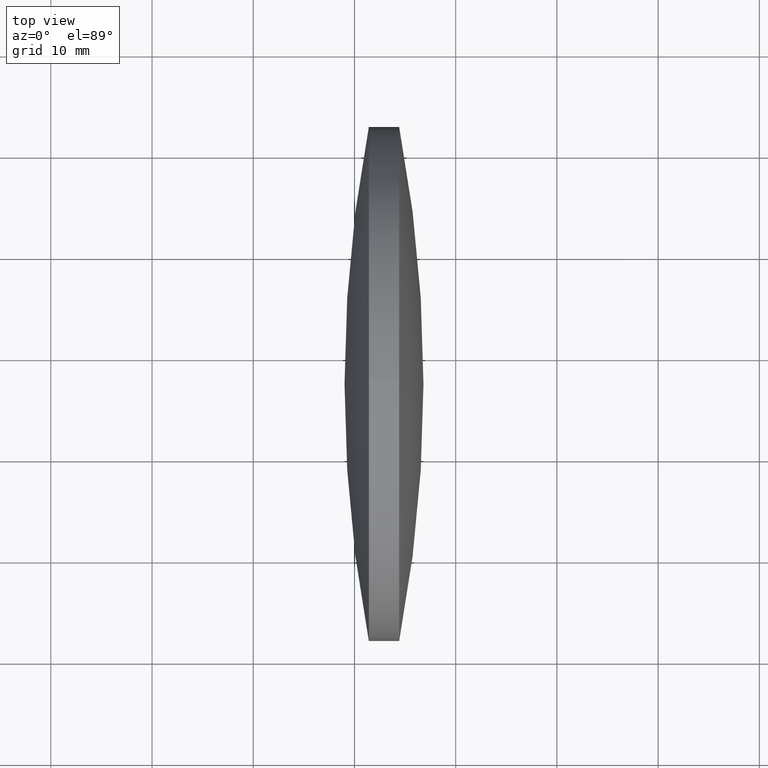
[diagram: clean part render]
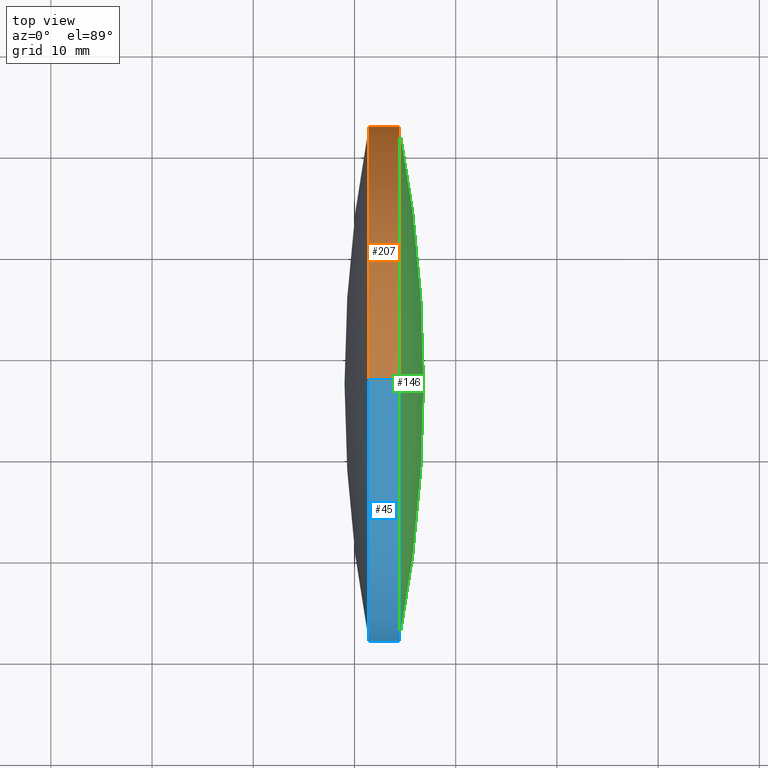
[diagram: same view with three faces highlighted in distinct colors, each labeled with its STEP entity id]
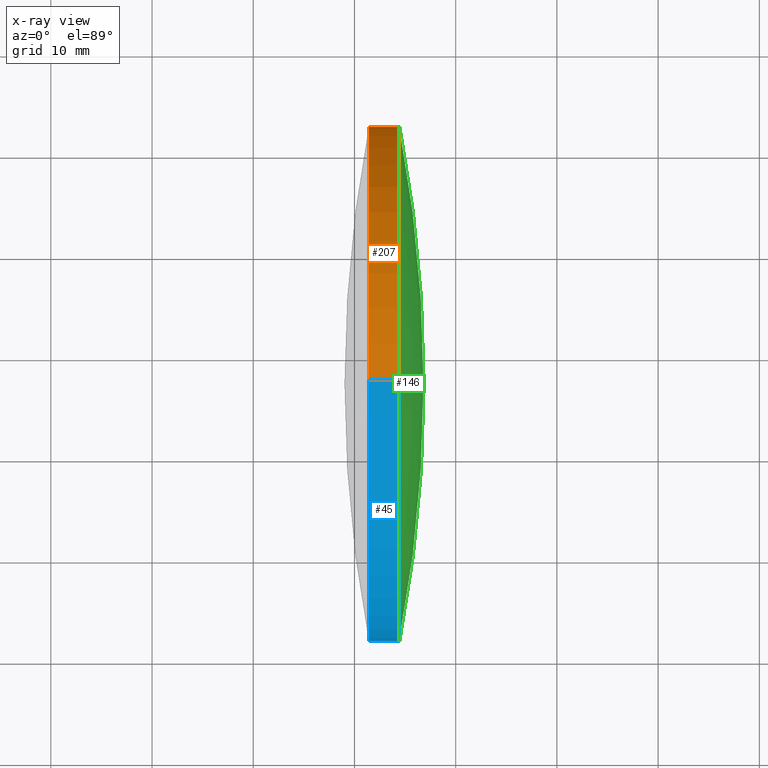
[diagram: x-ray of the same camera — body ghosted, the three highlighted faces saturated]
A machine part, top view with three faces highlighted in distinct colors.
The next image is the same camera in x-ray (body ghosted, the three faces saturated) — at least one of them is partly hidden behind the body in this view.
Their STEP definitions:

[orange] entity #207 — the highlighted cylindrical surface (partial cylindrical patch) has radius 25.4 mm, axis along (-1, -0, -0).
#2 = AXIS2_PLACEMENT_3D ( 'NONE', #140, #159, #9 ) ;
#5 = CARTESIAN_POINT ( 'NONE',  ( 171.4164086921822200, 97.23222604636956100, 25.39999999999999100 ) ) ;
#8 = CARTESIAN_POINT ( 'NONE',  ( 171.4164086921822200, 97.23222604636956100, -25.39999999999999100 ) ) ;
#9 = DIRECTION ( 'NONE',  ( 0.0000000000000000000, 0.0000000000000000000, 1.000000000000000000 ) ) ;
#11 = EDGE_CURVE ( 'NONE', #256, #63, #77, .T. ) ;
#25 = DIRECTION ( 'NONE',  ( 0.0000000000000000000, 0.0000000000000000000, 1.000000000000000000 ) ) ;
#26 = AXIS2_PLACEMENT_3D ( 'NONE', #341, #215, #181 ) ;
#31 = CIRCLE ( 'NONE', #75, 25.39999999999999100 ) ;
#42 = ORIENTED_EDGE ( 'NONE', *, *, #164, .F. ) ;
#49 = CARTESIAN_POINT ( 'NONE',  ( 171.4164086921822200, 97.23222604636956100, 0.0000000000000000000 ) ) ;
#50 = VERTEX_POINT ( 'NONE', #5 ) ;
#53 = LINE ( 'NONE', #212, #246 ) ;
#56 = CARTESIAN_POINT ( 'NONE',  ( 174.4163664064679400, 97.23222604636956100, -25.39999999999999100 ) ) ;
#63 = VERTEX_POINT ( 'NONE', #56 ) ;
#68 = DIRECTION ( 'NONE',  ( -1.000000000000000000, -0.0000000000000000000, -0.0000000000000000000 ) ) ;
#70 = CARTESIAN_POINT ( 'NONE',  ( 165.7441079421506900, 97.23222604636956100, 0.0000000000000000000 ) ) ;
#71 = AXIS2_PLACEMENT_3D ( 'NONE', #70, #178, #205 ) ;
#75 = AXIS2_PLACEMENT_3D ( 'NONE', #49, #68, #25 ) ;
#77 = CIRCLE ( 'NONE', #26, 25.39999999999999100 ) ;
#86 = EDGE_LOOP ( 'NONE', ( #343, #282, #42, #272, #165, #217 ) ) ;
#96 = VERTEX_POINT ( 'NONE', #8 ) ;
#97 = DIRECTION ( 'NONE',  ( 0.0000000000000000000, 0.0000000000000000000, 1.000000000000000000 ) ) ;
#106 = FACE_OUTER_BOUND ( 'NONE', #86, .T. ) ;
#113 = DIRECTION ( 'NONE',  ( -1.000000000000000000, -0.0000000000000000000, -0.0000000000000000000 ) ) ;
#126 = DIRECTION ( 'NONE',  ( -1.000000000000000000, -0.0000000000000000000, -0.0000000000000000000 ) ) ;
#134 = AXIS2_PLACEMENT_3D ( 'NONE', #279, #126, #97 ) ;
#137 = CARTESIAN_POINT ( 'NONE',  ( 165.7441079421506900, 97.23222604636956100, 25.39999999999999100 ) ) ;
#140 = CARTESIAN_POINT ( 'NONE',  ( 174.4163664064679400, 97.23222604636956100, 0.0000000000000000000 ) ) ;
#159 = DIRECTION ( 'NONE',  ( -1.000000000000000000, -0.0000000000000000000, -0.0000000000000000000 ) ) ;
#164 = EDGE_CURVE ( 'NONE', #299, #96, #243, .T. ) ;
#165 = ORIENTED_EDGE ( 'NONE', *, *, #224, .F. ) ;
#170 = CIRCLE ( 'NONE', #2, 25.39999999999999100 ) ;
#175 = CYLINDRICAL_SURFACE ( 'NONE', #71, 25.39999999999999100 ) ;
#176 = VERTEX_POINT ( 'NONE', #331 ) ;
#178 = DIRECTION ( 'NONE',  ( -1.000000000000000000, -0.0000000000000000000, -0.0000000000000000000 ) ) ;
#180 = LINE ( 'NONE', #137, #298 ) ;
#181 = DIRECTION ( 'NONE',  ( 0.0000000000000000000, 0.0000000000000000000, 1.000000000000000000 ) ) ;
#184 = EDGE_CURVE ( 'NONE', #50, #299, #31, .T. ) ;
#188 = CARTESIAN_POINT ( 'NONE',  ( 171.4164086921822200, 122.6322260463695000, 0.0000000000000000000 ) ) ;
#205 = DIRECTION ( 'NONE',  ( 0.0000000000000000000, 0.0000000000000000000, 1.000000000000000000 ) ) ;
#207 = ADVANCED_FACE ( 'NONE', ( #106 ), #175, .T. ) ;
#212 = CARTESIAN_POINT ( 'NONE',  ( 165.7441079421506900, 97.23222604636956100, -25.39999999999999100 ) ) ;
#215 = DIRECTION ( 'NONE',  ( -1.000000000000000000, -0.0000000000000000000, -0.0000000000000000000 ) ) ;
#217 = ORIENTED_EDGE ( 'NONE', *, *, #268, .T. ) ;
#219 = CARTESIAN_POINT ( 'NONE',  ( 174.4163664064679400, 122.6322260463691100, 0.0000000000000000000 ) ) ;
#223 = EDGE_CURVE ( 'NONE', #63, #96, #53, .T. ) ;
#224 = EDGE_CURVE ( 'NONE', #176, #50, #180, .T. ) ;
#243 = CIRCLE ( 'NONE', #134, 25.39999999999999100 ) ;
#246 = VECTOR ( 'NONE', #292, 1000.000000000000000 ) ;
#256 = VERTEX_POINT ( 'NONE', #219 ) ;
#268 = EDGE_CURVE ( 'NONE', #176, #256, #170, .T. ) ;
#272 = ORIENTED_EDGE ( 'NONE', *, *, #184, .F. ) ;
#279 = CARTESIAN_POINT ( 'NONE',  ( 171.4164086921822200, 97.23222604636956100, 0.0000000000000000000 ) ) ;
#282 = ORIENTED_EDGE ( 'NONE', *, *, #223, .T. ) ;
#292 = DIRECTION ( 'NONE',  ( -1.000000000000000000, -0.0000000000000000000, -0.0000000000000000000 ) ) ;
#298 = VECTOR ( 'NONE', #113, 1000.000000000000000 ) ;
#299 = VERTEX_POINT ( 'NONE', #188 ) ;
#331 = CARTESIAN_POINT ( 'NONE',  ( 174.4163664064679400, 97.23222604636956100, 25.39999999999999100 ) ) ;
#341 = CARTESIAN_POINT ( 'NONE',  ( 174.4163664064679400, 97.23222604636956100, 0.0000000000000000000 ) ) ;
#343 = ORIENTED_EDGE ( 'NONE', *, *, #11, .T. ) ;

[blue] entity #45 — the highlighted cylindrical surface (partial cylindrical patch) has radius 25.4 mm, axis along (-1, -0, -0).
#4 = CARTESIAN_POINT ( 'NONE',  ( 174.4163664064679400, 71.83222604636907200, -3.110602869834221600E-015 ) ) ;
#5 = CARTESIAN_POINT ( 'NONE',  ( 171.4164086921822200, 97.23222604636956100, 25.39999999999999100 ) ) ;
#7 = CARTESIAN_POINT ( 'NONE',  ( 171.4164086921822200, 97.23222604636956100, 0.0000000000000000000 ) ) ;
#8 = CARTESIAN_POINT ( 'NONE',  ( 171.4164086921822200, 97.23222604636956100, -25.39999999999999100 ) ) ;
#13 = CIRCLE ( 'NONE', #55, 25.39999999999999100 ) ;
#18 = DIRECTION ( 'NONE',  ( -1.000000000000000000, -0.0000000000000000000, -0.0000000000000000000 ) ) ;
#27 = ORIENTED_EDGE ( 'NONE', *, *, #224, .T. ) ;
#35 = CIRCLE ( 'NONE', #237, 25.39999999999999100 ) ;
#43 = EDGE_CURVE ( 'NONE', #63, #238, #13, .T. ) ;
#45 = ADVANCED_FACE ( 'NONE', ( #148 ), #130, .T. ) ;
#50 = VERTEX_POINT ( 'NONE', #5 ) ;
#53 = LINE ( 'NONE', #212, #246 ) ;
#55 = AXIS2_PLACEMENT_3D ( 'NONE', #119, #85, #138 ) ;
#56 = CARTESIAN_POINT ( 'NONE',  ( 174.4163664064679400, 97.23222604636956100, -25.39999999999999100 ) ) ;
#62 = DIRECTION ( 'NONE',  ( 0.0000000000000000000, 0.0000000000000000000, 1.000000000000000000 ) ) ;
#63 = VERTEX_POINT ( 'NONE', #56 ) ;
#64 = CARTESIAN_POINT ( 'NONE',  ( 165.7441079421506900, 97.23222604636956100, 0.0000000000000000000 ) ) ;
#65 = CARTESIAN_POINT ( 'NONE',  ( 171.4164086921822200, 97.23222604636956100, 0.0000000000000000000 ) ) ;
#66 = CARTESIAN_POINT ( 'NONE',  ( 174.4163664064679400, 97.23222604636956100, 0.0000000000000000000 ) ) ;
#85 = DIRECTION ( 'NONE',  ( -1.000000000000000000, -0.0000000000000000000, -0.0000000000000000000 ) ) ;
#91 = AXIS2_PLACEMENT_3D ( 'NONE', #66, #169, #250 ) ;
#96 = VERTEX_POINT ( 'NONE', #8 ) ;
#102 = CARTESIAN_POINT ( 'NONE',  ( 171.4164086921822200, 71.83222604636951300, -3.110602869834268200E-015 ) ) ;
#103 = ORIENTED_EDGE ( 'NONE', *, *, #43, .T. ) ;
#113 = DIRECTION ( 'NONE',  ( -1.000000000000000000, -0.0000000000000000000, -0.0000000000000000000 ) ) ;
#119 = CARTESIAN_POINT ( 'NONE',  ( 174.4163664064679400, 97.23222604636956100, 0.0000000000000000000 ) ) ;
#121 = ORIENTED_EDGE ( 'NONE', *, *, #288, .T. ) ;
#128 = ORIENTED_EDGE ( 'NONE', *, *, #232, .F. ) ;
#130 = CYLINDRICAL_SURFACE ( 'NONE', #293, 25.39999999999999100 ) ;
#137 = CARTESIAN_POINT ( 'NONE',  ( 165.7441079421506900, 97.23222604636956100, 25.39999999999999100 ) ) ;
#138 = DIRECTION ( 'NONE',  ( 0.0000000000000000000, 0.0000000000000000000, 1.000000000000000000 ) ) ;
#148 = FACE_OUTER_BOUND ( 'NONE', #244, .T. ) ;
#154 = CIRCLE ( 'NONE', #234, 25.39999999999999100 ) ;
#162 = DIRECTION ( 'NONE',  ( -1.000000000000000000, -0.0000000000000000000, -0.0000000000000000000 ) ) ;
#168 = CIRCLE ( 'NONE', #91, 25.39999999999999100 ) ;
#169 = DIRECTION ( 'NONE',  ( -1.000000000000000000, -0.0000000000000000000, -0.0000000000000000000 ) ) ;
#176 = VERTEX_POINT ( 'NONE', #331 ) ;
#180 = LINE ( 'NONE', #137, #298 ) ;
#183 = ORIENTED_EDGE ( 'NONE', *, *, #223, .F. ) ;
#198 = DIRECTION ( 'NONE',  ( 0.0000000000000000000, 0.0000000000000000000, 1.000000000000000000 ) ) ;
#212 = CARTESIAN_POINT ( 'NONE',  ( 165.7441079421506900, 97.23222604636956100, -25.39999999999999100 ) ) ;
#222 = DIRECTION ( 'NONE',  ( 0.0000000000000000000, 0.0000000000000000000, 1.000000000000000000 ) ) ;
#223 = EDGE_CURVE ( 'NONE', #63, #96, #53, .T. ) ;
#224 = EDGE_CURVE ( 'NONE', #176, #50, #180, .T. ) ;
#232 = EDGE_CURVE ( 'NONE', #96, #233, #154, .T. ) ;
#233 = VERTEX_POINT ( 'NONE', #102 ) ;
#234 = AXIS2_PLACEMENT_3D ( 'NONE', #7, #162, #62 ) ;
#237 = AXIS2_PLACEMENT_3D ( 'NONE', #65, #18, #198 ) ;
#238 = VERTEX_POINT ( 'NONE', #4 ) ;
#244 = EDGE_LOOP ( 'NONE', ( #183, #103, #121, #27, #294, #128 ) ) ;
#246 = VECTOR ( 'NONE', #292, 1000.000000000000000 ) ;
#250 = DIRECTION ( 'NONE',  ( 0.0000000000000000000, 0.0000000000000000000, 1.000000000000000000 ) ) ;
#288 = EDGE_CURVE ( 'NONE', #238, #176, #168, .T. ) ;
#292 = DIRECTION ( 'NONE',  ( -1.000000000000000000, -0.0000000000000000000, -0.0000000000000000000 ) ) ;
#293 = AXIS2_PLACEMENT_3D ( 'NONE', #64, #324, #222 ) ;
#294 = ORIENTED_EDGE ( 'NONE', *, *, #314, .F. ) ;
#298 = VECTOR ( 'NONE', #113, 1000.000000000000000 ) ;
#314 = EDGE_CURVE ( 'NONE', #233, #50, #35, .T. ) ;
#324 = DIRECTION ( 'NONE',  ( -1.000000000000000000, -0.0000000000000000000, -0.0000000000000000000 ) ) ;
#331 = CARTESIAN_POINT ( 'NONE',  ( 174.4163664064679400, 97.23222604636956100, 25.39999999999999100 ) ) ;

[green] entity #146 — the highlighted spherical surface has radius 135.608 mm.
#1 = DIRECTION ( 'NONE',  ( 0.0000000000000000000, 1.000000000000000000, 1.224646799147353200E-016 ) ) ;
#2 = AXIS2_PLACEMENT_3D ( 'NONE', #140, #159, #9 ) ;
#4 = CARTESIAN_POINT ( 'NONE',  ( 174.4163664064679400, 71.83222604636907200, -3.110602869834221600E-015 ) ) ;
#9 = DIRECTION ( 'NONE',  ( 0.0000000000000000000, 0.0000000000000000000, 1.000000000000000000 ) ) ;
#16 = DIRECTION ( 'NONE',  ( -0.0000000000000000000, 0.0000000000000000000, -1.000000000000000000 ) ) ;
#32 = ORIENTED_EDGE ( 'NONE', *, *, #218, .F. ) ;
#33 = DIRECTION ( 'NONE',  ( 0.0000000000000000000, 1.224646799147353200E-016, -1.000000000000000000 ) ) ;
#60 = CARTESIAN_POINT ( 'NONE',  ( 176.8163761207535200, 97.23222604636863800, 0.0000000000000000000 ) ) ;
#66 = CARTESIAN_POINT ( 'NONE',  ( 174.4163664064679400, 97.23222604636956100, 0.0000000000000000000 ) ) ;
#72 = ORIENTED_EDGE ( 'NONE', *, *, #288, .F. ) ;
#88 = DIRECTION ( 'NONE',  ( 0.0000000000000000000, 1.000000000000000000, 0.0000000000000000000 ) ) ;
#89 = CARTESIAN_POINT ( 'NONE',  ( 41.20858196179811000, 97.23222604636862300, 0.0000000000000000000 ) ) ;
#91 = AXIS2_PLACEMENT_3D ( 'NONE', #66, #169, #250 ) ;
#95 = SPHERICAL_SURFACE ( 'NONE', #263, 135.6077941589554100 ) ;
#105 = EDGE_CURVE ( 'NONE', #226, #256, #251, .T. ) ;
#135 = FACE_OUTER_BOUND ( 'NONE', #194, .T. ) ;
#140 = CARTESIAN_POINT ( 'NONE',  ( 174.4163664064679400, 97.23222604636956100, 0.0000000000000000000 ) ) ;
#146 = ADVANCED_FACE ( 'NONE', ( #135 ), #95, .T. ) ;
#159 = DIRECTION ( 'NONE',  ( -1.000000000000000000, -0.0000000000000000000, -0.0000000000000000000 ) ) ;
#168 = CIRCLE ( 'NONE', #91, 25.39999999999999100 ) ;
#169 = DIRECTION ( 'NONE',  ( -1.000000000000000000, -0.0000000000000000000, -0.0000000000000000000 ) ) ;
#170 = CIRCLE ( 'NONE', #2, 25.39999999999999100 ) ;
#176 = VERTEX_POINT ( 'NONE', #331 ) ;
#194 = EDGE_LOOP ( 'NONE', ( #32, #247, #313, #72 ) ) ;
#206 = AXIS2_PLACEMENT_3D ( 'NONE', #273, #276, #302 ) ;
#218 = EDGE_CURVE ( 'NONE', #226, #238, #265, .T. ) ;
#219 = CARTESIAN_POINT ( 'NONE',  ( 174.4163664064679400, 122.6322260463691100, 0.0000000000000000000 ) ) ;
#226 = VERTEX_POINT ( 'NONE', #60 ) ;
#238 = VERTEX_POINT ( 'NONE', #4 ) ;
#247 = ORIENTED_EDGE ( 'NONE', *, *, #105, .T. ) ;
#250 = DIRECTION ( 'NONE',  ( 0.0000000000000000000, 0.0000000000000000000, 1.000000000000000000 ) ) ;
#251 = CIRCLE ( 'NONE', #206, 135.6077941589554100 ) ;
#256 = VERTEX_POINT ( 'NONE', #219 ) ;
#263 = AXIS2_PLACEMENT_3D ( 'NONE', #89, #16, #88 ) ;
#265 = CIRCLE ( 'NONE', #330, 135.6077941589554100 ) ;
#268 = EDGE_CURVE ( 'NONE', #176, #256, #170, .T. ) ;
#273 = CARTESIAN_POINT ( 'NONE',  ( 41.20858196179811000, 97.23222604636862300, 0.0000000000000000000 ) ) ;
#276 = DIRECTION ( 'NONE',  ( -0.0000000000000000000, 0.0000000000000000000, 1.000000000000000000 ) ) ;
#288 = EDGE_CURVE ( 'NONE', #238, #176, #168, .T. ) ;
#302 = DIRECTION ( 'NONE',  ( 1.000000000000000000, 0.0000000000000000000, 0.0000000000000000000 ) ) ;
#313 = ORIENTED_EDGE ( 'NONE', *, *, #268, .F. ) ;
#317 = CARTESIAN_POINT ( 'NONE',  ( 41.20858196179811000, 97.23222604636862300, 0.0000000000000000000 ) ) ;
#330 = AXIS2_PLACEMENT_3D ( 'NONE', #317, #33, #1 ) ;
#331 = CARTESIAN_POINT ( 'NONE',  ( 174.4163664064679400, 97.23222604636956100, 25.39999999999999100 ) ) ;